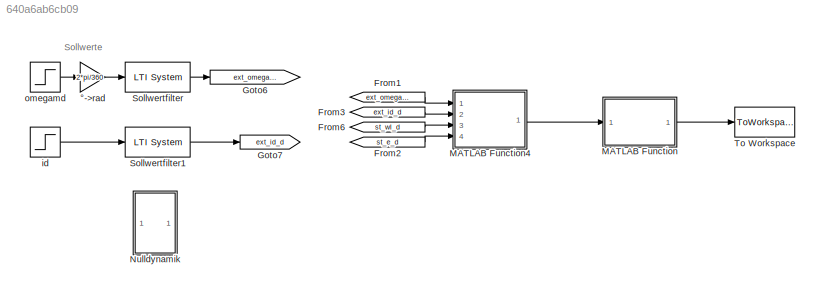
MODEL slx_640a6ab6cb09
KIND model
CONFIG AbsTol = auto
CONFIG FixedStep = auto
CONFIG MaxStep = auto
CONFIG MinStep = auto
CONFIG RelTol = 1e-3
CONFIG SampleTimeConstraint = Unconstrained
CONFIG Solver = ode45
CONFIG SolverMode = Auto
CONFIG SolverName = ode45
CONFIG StartTime = 0.0
CONFIG StopTime = 10.0
BLOCK [From] From1
  GotoTag = ext_omegam_d
  TagVisibility = global
BLOCK [From] From2
  GotoTag = st_e_d
  TagVisibility = global
BLOCK [From] From3
  GotoTag = ext_id_d
  TagVisibility = global
BLOCK [From] From6
  GotoTag = st_wl_d
  TagVisibility = global
BLOCK [Goto] Goto6
  GotoTag = ext_omegam_d
  TagVisibility = global
BLOCK [Goto] Goto7
  GotoTag = ext_id_d
  TagVisibility = global
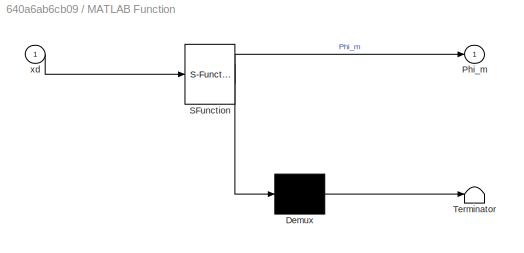
BLOCK [SubSystem] MATLAB Function
  ErrorFcn = Stateflow.Translate.translate
  PermitHierarchicalResolution = ExplicitOnly
  Ports = [1, 1]
  RequestExecContextInheritance = off
  SFBlockType = MATLAB Function
  TreatAsAtomicUnit = on
  Variant = off
BLOCK [Demux] MATLAB Function/ Demux 
  Outputs = 1
  Ports = [1, 1]
BLOCK [S-Function] MATLAB Function/ SFunction 
  EnableBusSupport = on
  FunctionName = sf_sfun
  PortCounts = [1 2]
  Ports = [1, 2]
  SFunctionDeploymentMode = off
  Tag = Stateflow S-Function get_phi 1
BLOCK [Terminator] MATLAB Function/ Terminator 
BLOCK [Outport] MATLAB Function/Phi_m
  IconDisplay = Port number
BLOCK [Inport] MATLAB Function/xd
  IconDisplay = Port number
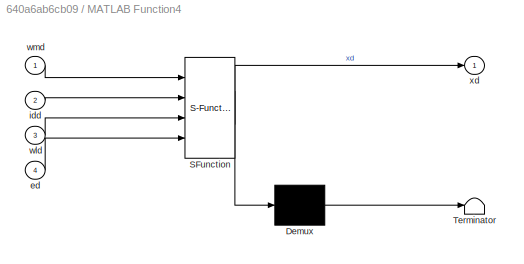
BLOCK [SubSystem] MATLAB Function4
  ErrorFcn = Stateflow.Translate.translate
  PermitHierarchicalResolution = ExplicitOnly
  Ports = [4, 1]
  RequestExecContextInheritance = off
  SFBlockType = MATLAB Function
  TreatAsAtomicUnit = on
  Variant = off
BLOCK [Demux] MATLAB Function4/ Demux 
  Outputs = 1
  Ports = [1, 1]
BLOCK [S-Function] MATLAB Function4/ SFunction 
  EnableBusSupport = on
  FunctionName = sf_sfun
  Parameters = parSys
  PortCounts = [4 2]
  Ports = [4, 2]
  SFunctionDeploymentMode = off
  Tag = Stateflow S-Function get_phi 6
BLOCK [Terminator] MATLAB Function4/ Terminator 
BLOCK [Inport] MATLAB Function4/ed
  IconDisplay = Port number
  Port = 4
BLOCK [Inport] MATLAB Function4/idd
  IconDisplay = Port number
  Port = 2
BLOCK [Inport] MATLAB Function4/wld
  IconDisplay = Port number
  Port = 3
BLOCK [Inport] MATLAB Function4/wmd
  IconDisplay = Port number
BLOCK [Outport] MATLAB Function4/xd
  IconDisplay = Port number
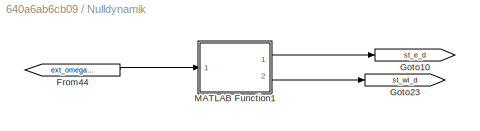
BLOCK [SubSystem] Nulldynamik
  Ports = []
  RequestExecContextInheritance = off
  Variant = off
BLOCK [From] Nulldynamik/From44
  GotoTag = ext_omegam_d
  TagVisibility = global
BLOCK [Goto] Nulldynamik/Goto10
  GotoTag = st_e_d
  TagVisibility = global
BLOCK [Goto] Nulldynamik/Goto23
  GotoTag = st_wl_d
  TagVisibility = global
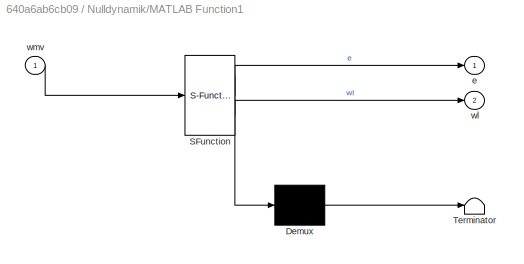
BLOCK [SubSystem] Nulldynamik/MATLAB Function1
  ErrorFcn = Stateflow.Translate.translate
  PermitHierarchicalResolution = ExplicitOnly
  Ports = [1, 2]
  RequestExecContextInheritance = off
  SFBlockType = MATLAB Function
  TreatAsAtomicUnit = on
  Variant = off
BLOCK [Demux] Nulldynamik/MATLAB Function1/ Demux 
  Outputs = 1
  Ports = [1, 1]
BLOCK [S-Function] Nulldynamik/MATLAB Function1/ SFunction 
  EnableBusSupport = on
  FunctionName = sf_sfun
  Parameters = parSys
  PortCounts = [1 3]
  Ports = [1, 3]
  SFunctionDeploymentMode = off
  Tag = Stateflow S-Function get_phi 3
BLOCK [Terminator] Nulldynamik/MATLAB Function1/ Terminator 
BLOCK [Outport] Nulldynamik/MATLAB Function1/e
  IconDisplay = Port number
BLOCK [Outport] Nulldynamik/MATLAB Function1/wl
  IconDisplay = Port number
  Port = 2
BLOCK [Inport] Nulldynamik/MATLAB Function1/wmv
  IconDisplay = Port number
BLOCK [Reference] Sollwertfilter  REF=cstblocks/LTI System
  Ports = [1, 1]
  SourceBlock = cstblocks/LTI System
  SourceType = LTI Block
BLOCK [Reference] Sollwertfilter1  REF=cstblocks/LTI System
  Ports = [1, 1]
  SourceBlock = cstblocks/LTI System
  SourceType = LTI Block
BLOCK [ToWorkspace] To Workspace
  MaxDataPoints = inf
  Ports = [1]
  SampleTime = -1
  SaveFormat = Timeseries
  VariableName = Phi_out
BLOCK [Step] id
  After = 0.1
  SampleTime = 0
  Time = 0.5
BLOCK [Step] omegamd
  After = 1000/60*360
  SampleTime = 0
  Time = 2
BLOCK [Gain] °->rad
  Gain = 2*pi/360
  OutDataTypeStr = Inherit: Inherit via internal rule
  ParamDataTypeStr = Inherit: Inherit via internal rule
  SaturateOnIntegerOverflow = off
ANNOTATION (root): Sollwerte
LINE From1:1 -> MATLAB Function4:1
LINE From2:1 -> MATLAB Function4:4
LINE From3:1 -> MATLAB Function4:2
LINE From6:1 -> MATLAB Function4:3
LINE MATLAB Function4:1 -> MATLAB Function:1
LINE MATLAB Function:1 -> To Workspace:1
LINE Nulldynamik/From44:1 -> Nulldynamik/MATLAB Function1:1
LINE Nulldynamik/MATLAB Function1:1 -> Nulldynamik/Goto10:1
LINE Nulldynamik/MATLAB Function1:2 -> Nulldynamik/Goto23:1
LINE Sollwertfilter1:1 -> Goto7:1
LINE Sollwertfilter:1 -> Goto6:1
LINE id:1 -> Sollwertfilter1:1
LINE omegamd:1 -> °->rad:1
LINE °->rad:1 -> Sollwertfilter:1
CHART MATLAB Function states=1 transitions=1
  STATE_LABEL 'eML_blk_kernel()'
  STATE_LABEL 'SCRIPT:\nfunction Phi_m = fcn(xd)\n%#codegen\n%Parameter\nI_l  = 4e-5;     %Trägheitsmoment Last\ncr1 = 10;       %lineare Steifigkeit Riemen\ncr3 = 1e6;      %kubische Steifigkeit Riemen (1e6)\ndl  = 0.001;    %visk. Dämpfung Last\nrl  = 0.05;     %Radius Riemenscheibe Last\nI_m  = 0.5e-5;   %Trägheitsmoment Motor\ndm  = 0.01;     %viskose Dämpfung Motor\nrm  = 0.025;    %Radius Riemenscheibe Motor\nRm  = 1....<+688ch>'
CHART Nulldynamik/MATLAB Function1 states=1 transitions=1
  STATE_LABEL 'eML_blk_kernel()'
  STATE_LABEL 'SCRIPT:\nfunction [e, wl] = Null_disc(wmv, parSys)\n%#codegen\npersistent k\npersistent x1\npersistent x2\npersistent wm_old\n\nwm = wmv(1);\n\n\nif (isempty(k))\n    k = 0;\nend\nif (isempty(x1))\n    x1 = parSys.eta_1_0;\nend\nif (isempty(x2))\n    x2 = parSys.eta_2_0;\nend\nif (isempty(wm_old))\n    wm_old = 0;\nend\n\ncr1 = parSys.cr1;\ncr3 = parSys.cr3;\nIl = parSys.Il;\nrl = parSys.rl;\nrm = parSys.rm;\ndl = parSys.dl;\n...<+307ch>'
CHART MATLAB Function4 states=1 transitions=1
  STATE_LABEL 'eML_blk_kernel()'
  STATE_LABEL 'SCRIPT:\nfunction xd  = fcn(wmd, idd, wld, ed, parSys)\n%#codegen\nwm = wmd(1);\nwmp = wmd(2);\nwmpp = wmd(3);\nid = idd(1);\nidp = idd(2);\nwl = wld;\ne = ed;\n\n%parameter;\n%Zuweisungen\nLm = parSys.Lm;\nRm = parSys.Rm;\ncr1 = parSys.cr1;\ncr3 = parSys.cr3;\nrm = parSys.rm;\ndm = parSys.dm;\nrl = parSys.rl;\ndl = parSys.dl;\nI_l = parSys.Il;\nI_m = parSys.Im;\np = parSys.p;\nPhi = parSys.Phi;\n\niq = 0.2e1 / 0.3e1 * (-2...<+101ch>'
